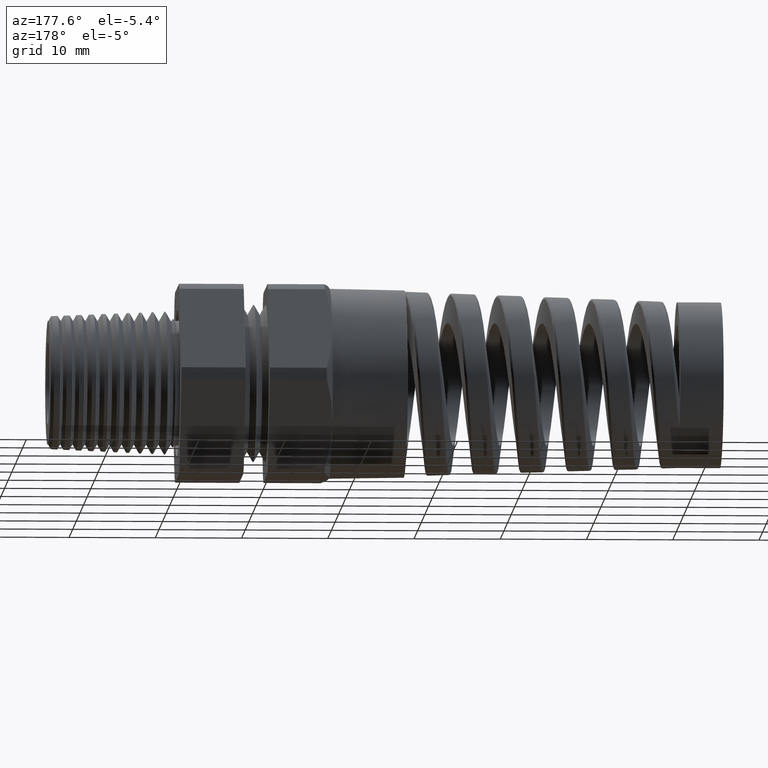
[diagram: clean part render]
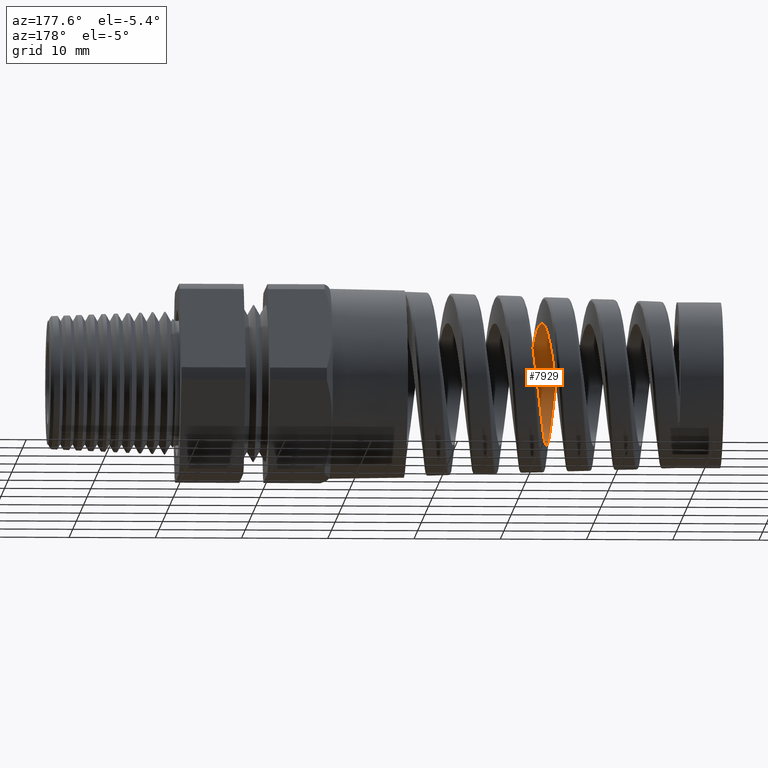
[diagram: same view with one face highlighted and labeled with its STEP entity id]
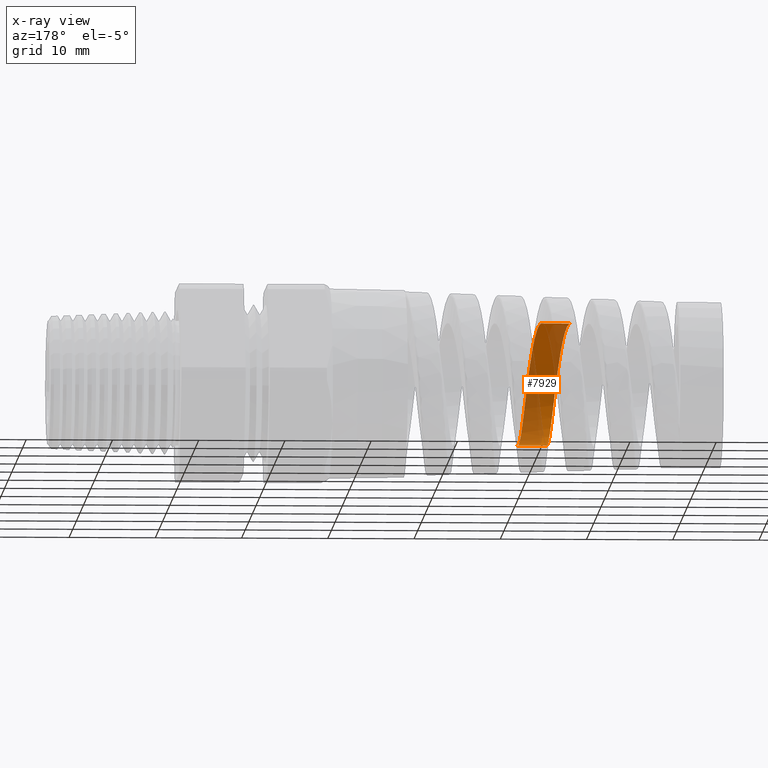
[diagram: x-ray of the same camera — body ghosted, the highlighted face saturated]
A machine part, auxiliary view. The second image highlights one B-rep face of the part: STEP entity #7929.
The next image is the same camera in x-ray: the body ghosted, the highlighted face saturated — about 49% of this face is hidden behind the body in this view.
In plain terms, the highlighted cylindrical surface (partial cylindrical patch) has radius 7.1002 mm, axis along (1, 0, 0).
Its self-contained STEP definition (entity closure, byte-faithful):
#2168 = CARTESIAN_POINT ( 'NONE',  ( -1.727203407638338500, -0.2648717340538553900, -0.08981145926559465400 ) ) ;
#2170 = CARTESIAN_POINT ( 'NONE',  ( -1.729431991964478900, -0.2701803372229883400, -0.07228913538135720000 ) ) ;
#2171 = CARTESIAN_POINT ( 'NONE',  ( -1.731650710277133000, -0.2746033400198308300, -0.05459546024160544900 ) ) ;
#4400 = CARTESIAN_POINT ( 'NONE',  ( -1.733868417200111500, -0.2772828826279357700, -0.03656674284166169800 ) ) ;
#4401 = CARTESIAN_POINT ( 'NONE',  ( -1.736093449547057000, -0.2790797195856593000, -0.01836937115133861100 ) ) ;
#4402 = CARTESIAN_POINT ( 'NONE',  ( -1.737214767104405800, -0.2795362515430112600, -0.009142621705460783600 ) ) ;
#4403 = CARTESIAN_POINT ( 'NONE',  ( -1.740570495408462200, -0.2795298677680719800, 0.01847905671644211100 ) ) ;
#4404 = CARTESIAN_POINT ( 'NONE',  ( -1.742773128754948200, -0.2777233592006082600, 0.03662523521048612800 ) ) ;
#4405 = CARTESIAN_POINT ( 'NONE',  ( -1.746095277126969100, -0.2723913656103587600, 0.06344572323153706300 ) ) ;
#4406 = CARTESIAN_POINT ( 'NONE',  ( -1.747205609570489100, -0.2701738926171635700, 0.07231896363111226000 ) ) ;
#4407 = CARTESIAN_POINT ( 'NONE',  ( -1.749443530524762400, -0.2648342649360557200, 0.08992650815175597100 ) ) ;
#4408 = CARTESIAN_POINT ( 'NONE',  ( -1.750568077938604800, -0.2617140046566413500, 0.09863461079167754100 ) ) ;
#4409 = CARTESIAN_POINT ( 'NONE',  ( -1.753909829442778200, -0.2512013318872910500, 0.1239835725163542900 ) ) ;
#4410 = CARTESIAN_POINT ( 'NONE',  ( -1.756118982578726700, -0.2426147543835133500, 0.1400438099633661600 ) ) ;
#4411 = CARTESIAN_POINT ( 'NONE',  ( -1.759455971050354800, -0.2273690359327795700, 0.1628691691753867100 ) ) ;
#4412 = CARTESIAN_POINT ( 'NONE',  ( -1.760578944642512400, -0.2218572894688876100, 0.1703034371425321300 ) ) ;
#4413 = CARTESIAN_POINT ( 'NONE',  ( -1.762812943206407000, -0.2101830784846284400, 0.1845182676912144300 ) ) ;
#4414 = CARTESIAN_POINT ( 'NONE',  ( -1.763921889611679500, -0.2040365909698099200, 0.1912889721995114400 ) ) ;
#4415 = CARTESIAN_POINT ( 'NONE',  ( -1.767242453163537800, -0.1846952476216017500, 0.2106164275240676200 ) ) ;
#4416 = CARTESIAN_POINT ( 'NONE',  ( -1.769447817309740800, -0.1706070148081481600, 0.2221978110751974500 ) ) ;
#4417 = CARTESIAN_POINT ( 'NONE',  ( -1.773931025021849800, -0.1399750871151287100, 0.2426635443066572400 ) ) ;
#4418 = CARTESIAN_POINT ( 'NONE',  ( -1.776160465641973400, -0.1237568300054784500, 0.2513070391366672400 ) ) ;
#4419 = CARTESIAN_POINT ( 'NONE',  ( -1.779485624112666000, -0.09851758032153251600, 0.2617566224973625300 ) ) ;
#4420 = CARTESIAN_POINT ( 'NONE',  ( -1.780593035442581900, -0.08993108353547382700, 0.2648312196464433500 ) ) ;
#4421 = CARTESIAN_POINT ( 'NONE',  ( -1.782818307160397600, -0.07240683417342529100, 0.2701488942236654500 ) ) ;
#4422 = CARTESIAN_POINT ( 'NONE',  ( -1.783942284077547200, -0.06341823137576679800, 0.2724002013293531100 ) ) ;
#4423 = CARTESIAN_POINT ( 'NONE',  ( -1.787289285037597400, -0.03638264351164440700, 0.2777647906945956400 ) ) ;
#4424 = CARTESIAN_POINT ( 'NONE',  ( -1.789491474975663200, -0.01824455947681642400, 0.2795341310835944800 ) ) ;
#4425 = CARTESIAN_POINT ( 'NONE',  ( -1.791710051043562000, 7.165445204319307900E-013, 0.2795341310835475800 ) ) ;
#4427 = B_SPLINE_CURVE_WITH_KNOTS ( 'NONE', 3,
 ( #4425, #4424, #4423, #4422, #4421, #4420, #4419, #4418, #4417, #4416, #4415, #4414, #4413, #4412, #4411, #4410, #4409, #4408, #4407, #4406, #4405, #4404, #4403, #4402, #4401, #4400, #2171, #2170, #2168, #11093, #11092, #11091, #11090, #11089, #11088, #4474, #4473, #4472, #4471, #4470, #4469, #4468, #4467, #4466, #4465 ),
 .UNSPECIFIED., .F., .F.,
 ( 4, 2, 2, 2, 2, 2, 2, 2, 2, 2, 2, 2, 2, 1, 2, 2, 2, 2, 2, 2, 2, 2, 4 ),
 ( 0.1023367645172535700, 0.1037311521009998500, 0.1044283458928729900, 0.1051255396847461200, 0.1065199272684924100, 0.1079143148522386900, 0.1086115086441118300, 0.1093087024359849800, 0.1107030900197312500, 0.1114002838116044000, 0.1120974776034775300, 0.1134918651872238200, 0.1141890589790969500, 0.1148862527709701000, 0.1155834465628432400, 0.1162806403547163900, 0.1176750279384626700, 0.1190694155222089500, 0.1204638031059552400, 0.1211609968978283700, 0.1218581906897015200, 0.1232525782734477900, 0.1246469658571940800 ),
 .UNSPECIFIED. ) ;
#4430 = DIRECTION ( 'NONE',  ( 0.0000000000000000000, 0.0000000000000000000, -1.000000000000000000 ) ) ;
#4431 = DIRECTION ( 'NONE',  ( 1.000000000000000000, 0.0000000000000000000, 0.0000000000000000000 ) ) ;
#4432 = CARTESIAN_POINT ( 'NONE',  ( 0.4924815508901369000, 0.0000000000000000000, 0.0000000000000000000 ) ) ;
#4433 = AXIS2_PLACEMENT_3D ( 'NONE', #4432, #4431, #4430 ) ;
#4434 = CYLINDRICAL_SURFACE ( 'NONE', #4433, 0.2795341310835475800 ) ;
#4435 = FACE_OUTER_BOUND ( 'NONE', #7930, .T. ) ;
#4438 = CARTESIAN_POINT ( 'NONE',  ( -1.596592261386639500, -0.2647880437162302100, -0.09006028451404161900 ) ) ;
#4439 = CARTESIAN_POINT ( 'NONE',  ( -1.595477243213090600, -0.2617045326285373800, -0.09865614274469021400 ) ) ;
#4440 = CARTESIAN_POINT ( 'NONE',  ( -1.592137992922983100, -0.2512379285394038500, -0.1238979400137679800 ) ) ;
#4441 = CARTESIAN_POINT ( 'NONE',  ( -1.589919833615235800, -0.2426504250791386400, -0.1400033785130981600 ) ) ;
#4442 = CARTESIAN_POINT ( 'NONE',  ( -1.585404920879127200, -0.2221298649024734700, -0.1707000231534179000 ) ) ;
#4443 = CARTESIAN_POINT ( 'NONE',  ( -1.583177574271938500, -0.2105134157738083000, -0.1848111648864475500 ) ) ;
#4444 = CARTESIAN_POINT ( 'NONE',  ( -1.579829304969741200, -0.1911922795797439700, -0.2041268632038347500 ) ) ;
#4445 = CARTESIAN_POINT ( 'NONE',  ( -1.578711658794572900, -0.1844308615026834000, -0.2102586274022475400 ) ) ;
#4446 = CARTESIAN_POINT ( 'NONE',  ( -1.576464783177301800, -0.1702530908690366200, -0.2218948357245809100 ) ) ;
#4447 = CARTESIAN_POINT ( 'NONE',  ( -1.575331502273383100, -0.1628029996144446700, -0.2274172245048621000 ) ) ;
#4448 = CARTESIAN_POINT ( 'NONE',  ( -1.571968025271106600, -0.1399222491146834600, -0.2426878975569435300 ) ) ;
#4449 = CARTESIAN_POINT ( 'NONE',  ( -1.569754384214941700, -0.1238521760429338300, -0.2512636880107410600 ) ) ;
#4450 = CARTESIAN_POINT ( 'NONE',  ( -1.565291069723470500, -0.09011029125793307300, -0.2652412822935739100 ) ) ;
#4451 = CARTESIAN_POINT ( 'NONE',  ( -1.563024003061279900, -0.07228946133940650200, -0.2706410956467303300 ) ) ;
#4452 = CARTESIAN_POINT ( 'NONE',  ( -1.558553046343431800, -0.03648831799322737500, -0.2777426354084466800 ) ) ;
#4453 = CARTESIAN_POINT ( 'NONE',  ( -1.556328747140895300, -0.01835867908649802300, -0.2795341310836165800 ) ) ;
#4454 = CARTESIAN_POINT ( 'NONE',  ( -1.554081803352897400, 1.051006484414054900E-012, -0.2795341310835475800 ) ) ;
#4455 = LINE ( 'NONE', #4485, #4484 ) ;
#4456 = B_SPLINE_CURVE_WITH_KNOTS ( 'NONE', 3,
 ( #4454, #4453, #4452, #4451, #4450, #4449, #4448, #4447, #4446, #4445, #4444, #4443, #4442, #4441, #4440, #4439, #4438, #4512, #4511, #4510, #4509, #4508, #4507, #4506, #4505, #4504, #4503, #4502, #4501, #4500, #4499, #4498, #4497, #4496, #4495, #4494, #4493, #4492, #4491, #4490, #4489, #4488, #4487, #4486 ),
 .UNSPECIFIED., .F., .F.,
 ( 4, 2, 2, 2, 2, 2, 2, 2, 2, 2, 2, 2, 2, 2, 2, 2, 2, 2, 2, 2, 2, 4 ),
 ( 0.1382225219490067200, 0.1396204049504841900, 0.1410182879519616700, 0.1424161709534391700, 0.1431151124541779100, 0.1438140539549166400, 0.1452119369563941200, 0.1466098199578715900, 0.1473087614586103500, 0.1480077029593490900, 0.1494055859608265600, 0.1508034689623040700, 0.1522013519637815400, 0.1529002934645202800, 0.1535992349652590100, 0.1549971179667365100, 0.1563950009682139900, 0.1570939424689527500, 0.1577928839696914900, 0.1591907669711689600, 0.1598897084719077300, 0.1605886499726464600 ),
 .UNSPECIFIED. ) ;
#4457 = CARTESIAN_POINT ( 'NONE',  ( -1.554081803352897400, 1.051006484414054900E-012, -0.2795341310835475800 ) ) ;
#4458 = CARTESIAN_POINT ( 'NONE',  ( -1.661530709836438900, 1.900875324653965700E-014, 0.2795341310835475800 ) ) ;
#4459 = DIRECTION ( 'NONE',  ( 1.000000000000000000, 0.0000000000000000000, 0.0000000000000000000 ) ) ;
#4460 = VECTOR ( 'NONE', #4459, 39.37007874015748100 ) ;
#4461 = CARTESIAN_POINT ( 'NONE',  ( 0.4924815508901369000, 3.423305788839031900E-017, 0.2795341310835475800 ) ) ;
#4462 = LINE ( 'NONE', #4461, #4460 ) ;
#4463 = CARTESIAN_POINT ( 'NONE',  ( -1.684923578216410500, -6.701564609457645200E-016, -0.2795341310835475800 ) ) ;
#4464 = CARTESIAN_POINT ( 'NONE',  ( -1.791710051043562000, 7.165445204319307900E-013, 0.2795341310835475800 ) ) ;
#4465 = CARTESIAN_POINT ( 'NONE',  ( -1.684923578216410500, -6.701564609457645200E-016, -0.2795341310835475800 ) ) ;
#4466 = CARTESIAN_POINT ( 'NONE',  ( -1.687141141867155100, -0.01821473734050352600, -0.2795341310835474700 ) ) ;
#4467 = CARTESIAN_POINT ( 'NONE',  ( -1.689360609987229100, -0.03642032763561508400, -0.2777653536700870900 ) ) ;
#4468 = CARTESIAN_POINT ( 'NONE',  ( -1.693850419076036400, -0.07262747272202445300, -0.2705647467253738900 ) ) ;
#4469 = CARTESIAN_POINT ( 'NONE',  ( -1.696055548072324300, -0.09008681595665700400, -0.2652464154750094300 ) ) ;
#4470 = CARTESIAN_POINT ( 'NONE',  ( -1.699374283450189900, -0.1153384100784225600, -0.2547928037130259800 ) ) ;
#4471 = CARTESIAN_POINT ( 'NONE',  ( -1.700482269125026100, -0.1235982533362497700, -0.2508925885697719800 ) ) ;
#4472 = CARTESIAN_POINT ( 'NONE',  ( -1.702713394583981600, -0.1397945371101110000, -0.2422418349938391700 ) ) ;
#4473 = CARTESIAN_POINT ( 'NONE',  ( -1.703839217421864600, -0.1477465002856723200, -0.2374747197046558300 ) ) ;
#4474 = CARTESIAN_POINT ( 'NONE',  ( -1.707183106180076200, -0.1705959400548112400, -0.2221983737491997300 ) ) ;
#4483 = DIRECTION ( 'NONE',  ( 1.000000000000000000, 0.0000000000000000000, 0.0000000000000000000 ) ) ;
#4484 = VECTOR ( 'NONE', #4483, 39.37007874015748100 ) ;
#4485 = CARTESIAN_POINT ( 'NONE',  ( 0.4924815508901369000, 0.0000000000000000000, -0.2795341310835475800 ) ) ;
#4486 = CARTESIAN_POINT ( 'NONE',  ( -1.661530709836438900, 1.900875324653965700E-014, 0.2795341310835475800 ) ) ;
#4487 = CARTESIAN_POINT ( 'NONE',  ( -1.660416716528182000, -0.009114306675212227200, 0.2795341310835480200 ) ) ;
#4488 = CARTESIAN_POINT ( 'NONE',  ( -1.659300780521410200, -0.01824894017524190900, 0.2790894663531678400 ) ) ;
#4489 = CARTESIAN_POINT ( 'NONE',  ( -1.657052992167254500, -0.03655853586994273200, 0.2772858227567028800 ) ) ;
#4490 = CARTESIAN_POINT ( 'NONE',  ( -1.655924209993740300, -0.04570730781618177800, 0.2759236093684880900 ) ) ;
#4491 = CARTESIAN_POINT ( 'NONE',  ( -1.652569703635153400, -0.07261794002721822000, 0.2705561461938172900 ) ) ;
#4492 = CARTESIAN_POINT ( 'NONE',  ( -1.650351466685444600, -0.09004314279814577800, 0.2652665424473398800 ) ) ;
#4493 = CARTESIAN_POINT ( 'NONE',  ( -1.646988395062507300, -0.1154003290284887100, 0.2547661445665915800 ) ) ;
#4494 = CARTESIAN_POINT ( 'NONE',  ( -1.645855382703834500, -0.1237655601614016000, 0.2508106492171429100 ) ) ;
#4495 = CARTESIAN_POINT ( 'NONE',  ( -1.643601673727128000, -0.1399821376377705700, 0.2421340471415585100 ) ) ;
#4496 = CARTESIAN_POINT ( 'NONE',  ( -1.642483519170739200, -0.1478206473863608900, 0.2374267045722298100 ) ) ;
#4497 = CARTESIAN_POINT ( 'NONE',  ( -1.639139626840005400, -0.1705468769947570700, 0.2222280512816518500 ) ) ;
#4498 = CARTESIAN_POINT ( 'NONE',  ( -1.636923238573985800, -0.1846526069522870200, 0.2106703189455031700 ) ) ;
#4499 = CARTESIAN_POINT ( 'NONE',  ( -1.632422149836776100, -0.2106982148121577000, 0.1846207756831437800 ) ) ;
#4500 = CARTESIAN_POINT ( 'NONE',  ( -1.630185760428266100, -0.2223390497174701200, 0.1704003107455286700 ) ) ;
#4501 = CARTESIAN_POINT ( 'NONE',  ( -1.626840786731128800, -0.2375098807169140100, 0.1476864385282986000 ) ) ;
#4502 = CARTESIAN_POINT ( 'NONE',  ( -1.625724628813287800, -0.2421998008541987300, 0.1398656737924365800 ) ) ;
#4503 = CARTESIAN_POINT ( 'NONE',  ( -1.623480415107501300, -0.2508327011006917200, 0.1237178495519416500 ) ) ;
#4504 = CARTESIAN_POINT ( 'NONE',  ( -1.622346072592191000, -0.2547936898612104800, 0.1153425310661615700 ) ) ;
#4505 = CARTESIAN_POINT ( 'NONE',  ( -1.618971076396722200, -0.2653285771299002700, 0.08987574923013286200 ) ) ;
#4506 = CARTESIAN_POINT ( 'NONE',  ( -1.616755670865445800, -0.2706023039889614600, 0.07243293932384194100 ) ) ;
#4507 = CARTESIAN_POINT ( 'NONE',  ( -1.612298029945316500, -0.2777211731097033500, 0.03664815997831097300 ) ) ;
#4508 = CARTESIAN_POINT ( 'NONE',  ( -1.610034027710515800, -0.2795438824336599100, 0.01811973972779246800 ) ) ;
#4509 = CARTESIAN_POINT ( 'NONE',  ( -1.605562823787672900, -0.2795242994405686100, -0.01841937013434772100 ) ) ;
#4510 = CARTESIAN_POINT ( 'NONE',  ( -1.603341205974055300, -0.2777403336378547700, -0.03654396236057844800 ) ) ;
#4511 = CARTESIAN_POINT ( 'NONE',  ( -1.599972367438519800, -0.2723793011010652300, -0.06350435174647657600 ) ) ;
#4512 = CARTESIAN_POINT ( 'NONE',  ( -1.598837855857557800, -0.2701252417286978400, -0.07249770150032980300 ) ) ;
#7929 = ADVANCED_FACE ( 'NONE', ( #4435 ), #4434, .F. ) ;
#7930 = EDGE_LOOP ( 'NONE', ( #7931, #7935, #7938, #7941 ) ) ;
#7931 = ORIENTED_EDGE ( 'NONE', *, *, #7932, .F. ) ;
#7932 = EDGE_CURVE ( 'NONE', #7933, #7934, #4427, .T. ) ;
#7933 = VERTEX_POINT ( 'NONE', #4464 ) ;
#7934 = VERTEX_POINT ( 'NONE', #4463 ) ;
#7935 = ORIENTED_EDGE ( 'NONE', *, *, #7936, .T. ) ;
#7936 = EDGE_CURVE ( 'NONE', #7933, #7937, #4462, .T. ) ;
#7937 = VERTEX_POINT ( 'NONE', #4458 ) ;
#7938 = ORIENTED_EDGE ( 'NONE', *, *, #7939, .F. ) ;
#7939 = EDGE_CURVE ( 'NONE', #7940, #7937, #4456, .T. ) ;
#7940 = VERTEX_POINT ( 'NONE', #4457 ) ;
#7941 = ORIENTED_EDGE ( 'NONE', *, *, #7942, .F. ) ;
#7942 = EDGE_CURVE ( 'NONE', #7934, #7940, #4455, .T. ) ;
#11088 = CARTESIAN_POINT ( 'NONE',  ( -1.709391981593184200, -0.1846722046580938600, -0.2106405381584446300 ) ) ;
#11089 = CARTESIAN_POINT ( 'NONE',  ( -1.713842343556408500, -0.2105233506002924500, -0.1848057854640552900 ) ) ;
#11090 = CARTESIAN_POINT ( 'NONE',  ( -1.716093657461569300, -0.2223324716636897200, -0.1704124293640511500 ) ) ;
#11091 = CARTESIAN_POINT ( 'NONE',  ( -1.720524442096751100, -0.2425948723693635800, -0.1400708818346459700 ) ) ;
#11092 = CARTESIAN_POINT ( 'NONE',  ( -1.722726339981488500, -0.2511977423300124600, -0.1240034296061449700 ) ) ;
#11093 = CARTESIAN_POINT ( 'NONE',  ( -1.726077921545224700, -0.2617533567763860000, -0.09853409117262339200 ) ) ;